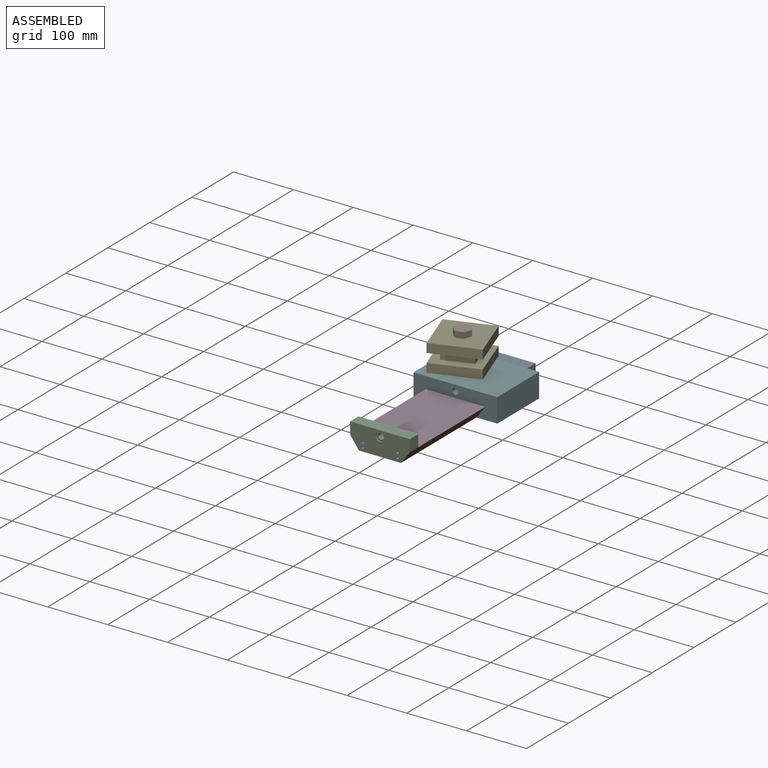
[diagram: assembled view]
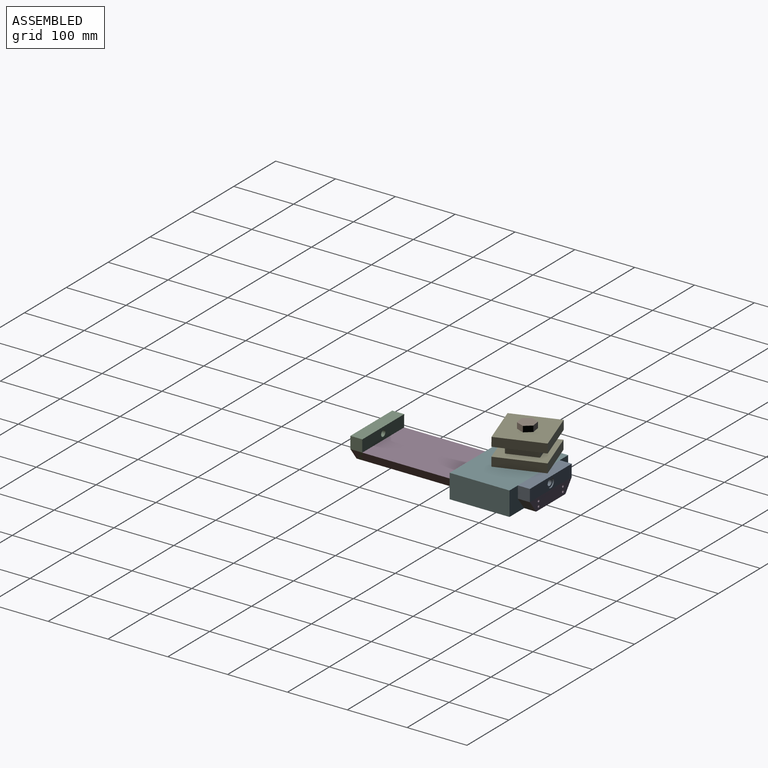
[diagram: assembled view, second angle]
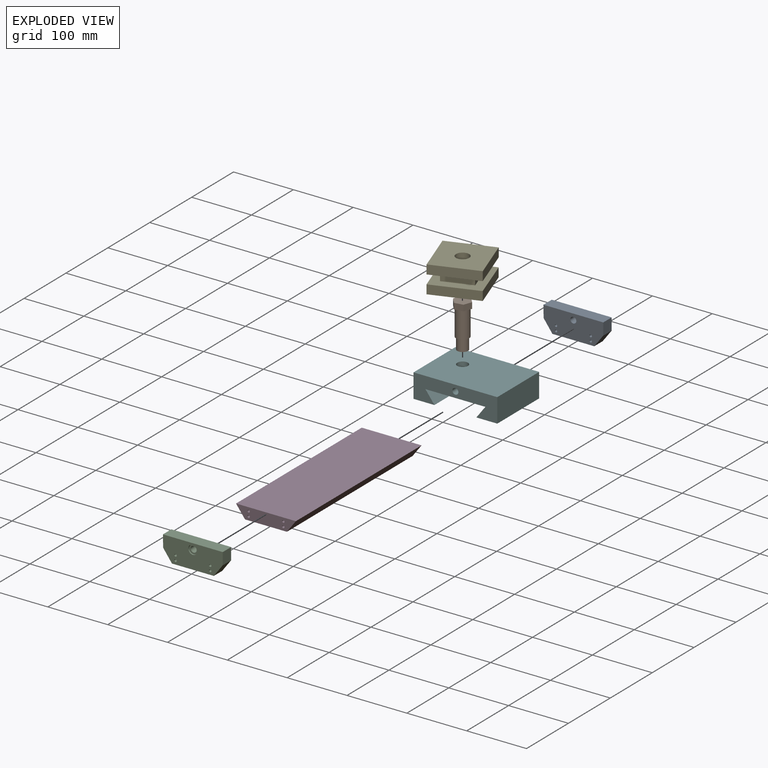
[diagram: exploded view]
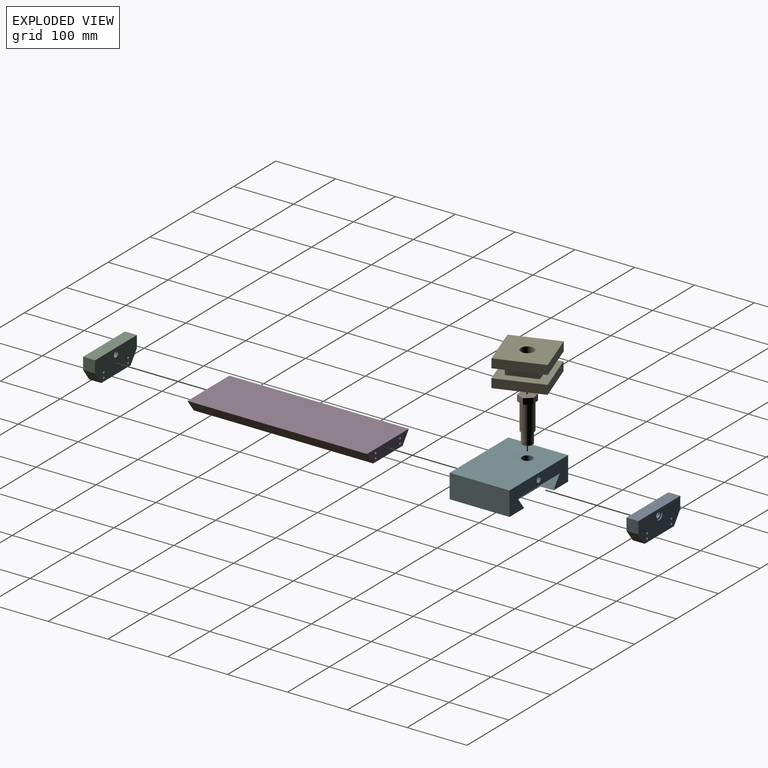
[diagram: exploded view, second angle]
ASSEMBLY  parts=6 mates=5
PART A: 15 faces, bbox 100x20x40 mm
  f0: cylinder r=5mm len=18mm, axis (0,-1,0), area 565.5mm2, adj f12,f14
  f1: plane 20x20mm, normal (-1,0,-0.02), area 400mm2, adj f2,f6,f11,f12
  f2: plane 20x20mm, normal (-0.81,0,-0.59), area 495.9mm2, adj f1,f3,f11,f12
  f3: plane 70x20mm, normal (0,0,-1), area 1400mm2, adj f2,f4,f11,f12
  f4: plane 20x20mm, normal (0.8,0,-0.6), area 500mm2, adj f3,f5,f11,f12
  f5: plane 20x20mm, normal (1,0,0), area 400mm2, adj f4,f6,f11,f12
  f6: plane 100x20mm, normal (0,0,1), area 2000mm2, adj f1,f5,f11,f12
  f7: cylinder r=2mm len=20mm, axis (0,-1,0), area 251.3mm2, adj f11,f12
  f8: cylinder r=2mm len=20mm, axis (0,-1,0), area 251.3mm2, adj f11,f12
  f9: cylinder r=2mm len=20mm, axis (0,-1,0), area 251.3mm2, adj f11,f12
  f10: cylinder r=2mm len=20mm, axis (0,-1,0), area 251.3mm2, adj f11,f12
  f11: plane 100x40mm, normal (0,1,0), area 3466.1mm2, adj f1,f2,f3,f4,f5,f6,f7,f8
  f12: plane 100x40mm, normal (0,-1,0), area 3564.2mm2, adj f0,f1,f2,f3,f4,f5,f6,f7
  f13: cylinder r=7.5mm len=15mm, axis (0,1,0), area 94.2mm2, adj f11,f14
  f14: plane 15x15mm, normal (0,1,0), area 98.2mm2, adj f0,f13
PART B: 12 faces, bbox 27.1x28.5x74 mm
  f0: plane 13.54x10mm, normal (-0.35,0.94,0), area 144.3mm2, adj f1,f5,f6,f7
  f1: plane 14.23x10mm, normal (-0.99,0.17,0), area 144.3mm2, adj f0,f2,f6,f7
  f2: plane 11.11x10mm, normal (-0.64,-0.77,0), area 144.3mm2, adj f1,f3,f6,f7
  f3: plane 13.54x10mm, normal (0.35,-0.94,0), area 144.3mm2, adj f2,f4,f6,f7
  f4: plane 14.23x10mm, normal (0.99,-0.17,0), area 144.3mm2, adj f3,f5,f6,f7
  f5: plane 11.11x10mm, normal (0.64,0.77,0), area 144.3mm2, adj f0,f4,f6,f7
  f6: plane 28.46x27.07mm, normal (0,0,-1), area 162.9mm2, adj f0,f1,f2,f3,f4,f5,f8
  f7: plane 28.46x27.07mm, normal (0,0,1), area 541.3mm2, adj f0,f1,f2,f3,f4,f5
  f8: cylinder r=10.97mm len=44.5mm, axis (0,0,1), area 3068.6mm2, adj f6,f9
  f9: plane 21.95x21.95mm, normal (0,0,-1), area 123.9mm2, adj f8,f10
  f10: cylinder r=9mm len=19.5mm, axis (0,0,1), area 1102.7mm2, adj f9,f11
  f11: plane 18x18mm, normal (0,0,-1), area 254.5mm2, adj f10
PART C: 15 faces, bbox 100x20x40 mm
  f0: cylinder r=5mm len=18mm, axis (0,-1,0), area 565.5mm2, adj f11,f14
  f1: plane 20x20mm, normal (-1,0,-0.02), area 400mm2, adj f2,f6,f11,f12
  f2: plane 20x20mm, normal (-0.81,0,-0.59), area 495.9mm2, adj f1,f3,f11,f12
  f3: plane 70x20mm, normal (0,0,-1), area 1400mm2, adj f2,f4,f11,f12
  f4: plane 20x20mm, normal (0.8,0,-0.6), area 500mm2, adj f3,f5,f11,f12
  f5: plane 20x20mm, normal (1,0,0), area 400mm2, adj f4,f6,f11,f12
  f6: plane 100x20mm, normal (0,0,1), area 2000mm2, adj f1,f5,f11,f12
  f7: cylinder r=2mm len=20mm, axis (0,-1,0), area 251.3mm2, adj f11,f12
  f8: cylinder r=2mm len=20mm, axis (0,-1,0), area 251.3mm2, adj f11,f12
  f9: cylinder r=2mm len=20mm, axis (0,-1,0), area 251.3mm2, adj f11,f12
  f10: cylinder r=2mm len=20mm, axis (0,-1,0), area 251.3mm2, adj f11,f12
  f11: plane 100x40mm, normal (0,1,0), area 3564.2mm2, adj f0,f1,f2,f3,f4,f5,f6,f7
  f12: plane 100x40mm, normal (0,-1,0), area 3466.1mm2, adj f1,f2,f3,f4,f5,f6,f7,f8
  f13: cylinder r=7.5mm len=15mm, axis (0,-1,0), area 94.2mm2, adj f12,f14
  f14: plane 15x15mm, normal (0,-1,0), area 98.2mm2, adj f0,f13
PART D: 22 faces, bbox 100x300x20 mm
  f0: plane 300x100mm, normal (0,0,1), area 30000mm2, adj f1,f3,f4,f5
  f1: plane 300x20mm, normal (-0.8,0,-0.6), area 7500mm2, adj f0,f2,f4,f5
  f2: plane 300x70mm, normal (0,0,-1), area 21000mm2, adj f1,f3,f4,f5
  f3: plane 300x20mm, normal (0.8,0,-0.6), area 7500mm2, adj f0,f2,f4,f5
  f4: plane 100x20mm, normal (0,-1,0), area 1649.7mm2, adj f0,f1,f2,f3,f14,f16,f18,f20
  f5: plane 100x20mm, normal (0,1,0), area 1649.7mm2, adj f0,f1,f2,f3,f6,f8,f10,f12
  f6: cylinder r=2mm len=25mm, axis (0,1,0), area 314.2mm2, adj f5,f7
  f7: plane 4x4mm, normal (0,1,0), area 12.6mm2, adj f6
  f8: cylinder r=2mm len=25mm, axis (0,1,0), area 314.2mm2, adj f5,f9
  f9: plane 4x4mm, normal (0,1,0), area 12.6mm2, adj f8
  f10: cylinder r=2mm len=25mm, axis (0,1,0), area 314.2mm2, adj f5,f11
  f11: plane 4x4mm, normal (0,1,0), area 12.6mm2, adj f10
  f12: cylinder r=2mm len=25mm, axis (0,1,0), area 314.2mm2, adj f5,f13
  f13: plane 4x4mm, normal (0,1,0), area 12.6mm2, adj f12
  f14: cylinder r=2mm len=25mm, axis (0,-1,0), area 314.2mm2, adj f4,f15
  f15: plane 4x4mm, normal (0,-1,0), area 12.6mm2, adj f14
  f16: cylinder r=2mm len=25mm, axis (0,-1,0), area 314.2mm2, adj f4,f17
  f17: plane 4x4mm, normal (0,-1,0), area 12.6mm2, adj f16
  f18: cylinder r=2mm len=25mm, axis (0,-1,0), area 314.2mm2, adj f4,f19
  f19: plane 4x4mm, normal (0,-1,0), area 12.6mm2, adj f18
  f20: cylinder r=2mm len=25mm, axis (0,-1,0), area 314.2mm2, adj f4,f21
  f21: plane 4x4mm, normal (0,-1,0), area 12.6mm2, adj f20
PART E: 18 faces, bbox 80.2x80x45 mm
  f0: plane 50x15mm, normal (-1,0,0), area 750mm2, adj f6,f10,f16,f17
  f1: plane 50x15mm, normal (1,0,0), area 750mm2, adj f10,f11,f16,f17
  f2: plane 80x15mm, normal (0,1,0), area 1200mm2, adj f7,f8,f9,f10
  f3: plane 80.21x15mm, normal (0,-1,0), area 1201.6mm2, adj f4,f5,f6,f11,f12
  f4: plane 80x80mm, normal (0,0,1), area 6019.9mm2, adj f3,f5,f12,f13,f15
  f5: plane 80x15mm, normal (-1,0,0.01), area 1200mm2, adj f3,f4,f6,f13
  f6: plane 80x15mm, normal (0,0,-1), area 1200mm2, adj f0,f3,f5,f11,f13
  f7: plane 80x15mm, normal (-1,0,0), area 1200mm2, adj f2,f8,f10,f14
  f8: plane 80x80mm, normal (0,0,-1), area 6019.9mm2, adj f2,f7,f9,f14,f15
  f9: plane 80x15mm, normal (1,0,0), area 1200mm2, adj f2,f8,f10,f14
  f10: plane 80x80mm, normal (0,0,1), area 3900mm2, adj f0,f1,f2,f7,f9,f14,f16,f17
  f11: plane 80x65.21mm, normal (0,0,-1), area 2716.9mm2, adj f1,f3,f6,f12,f13,f16,f17
  f12: plane 80x15mm, normal (1,0,0), area 1200mm2, adj f3,f4,f11,f13
  f13: plane 80.21x15mm, normal (0,1,0), area 1201.6mm2, adj f4,f5,f6,f11,f12
  f14: plane 80x15mm, normal (0,-1,0), area 1200mm2, adj f7,f8,f9,f10
  f15: cylinder r=11mm len=45mm, axis (0,0,1), area 3110.2mm2, adj f4,f8
  f16: plane 50x15mm, normal (0,-1,0), area 750mm2, adj f0,f1,f10,f11
  f17: plane 50x15mm, normal (0,1,0), area 750mm2, adj f0,f1,f10,f11
PART F: 12 faces, bbox 140x100x40 mm
  f0: plane 100x40mm, normal (1,0,0), area 4000mm2, adj f1,f8,f9,f10
  f1: plane 140x100mm, normal (0,0,1), area 13745.5mm2, adj f0,f2,f9,f10,f11
  f2: plane 100x40mm, normal (-1,0,0), area 4000mm2, adj f1,f3,f9,f10
  f3: plane 100x34.95mm, normal (0,0,-1), area 3495mm2, adj f2,f4,f9,f10
  f4: plane 100x20mm, normal (0.8,0,0.6), area 2500mm2, adj f3,f5,f9,f10
  f5: plane 100.1x100mm, normal (0,0,-1), area 9755.5mm2, adj f4,f6,f9,f10,f11
  f6: plane 100x20mm, normal (-0.8,0,0.6), area 2500mm2, adj f5,f8,f9,f10
  f7: cylinder r=5mm len=100mm, axis (0,1,0), area 3141.6mm2, adj f9,f10
  f8: plane 100x34.95mm, normal (0,0,-1), area 3495mm2, adj f0,f6,f9,f10
  f9: plane 140x40mm, normal (0,-1,0), area 3819.5mm2, adj f0,f1,f2,f3,f4,f5,f6,f7
  f10: plane 140x40mm, normal (0,1,0), area 3819.5mm2, adj f0,f1,f2,f3,f4,f5,f6,f7
  f11: cylinder r=9mm len=20mm, axis (0,0,1), area 1131mm2, adj f1,f5
PLACE A t=(0,130,-0.82)mm
PLACE B rot(axis=(0,0,1),109.1deg) t=(-30,90,63.93)mm
PLACE C t=(0,-150,-0.82)mm
PLACE D at identity fixed
PLACE E rot(axis=(0,0,1),109.1deg) t=(-30,90,31.16)mm
PLACE F rot(axis=(0,-0.02,-1),0deg) t=(0,80,-0.82)mm
MATE revolute E.f15 <-> F.f11  axis (0,0,1) through (-30,90,9.18)mm
MATE fastened B.f8 <-> E.f15  axis (0,0,1) through (-30,90,31.68)mm
MATE fastened C.f7 <-> D.f12  axis (0,-1,0) through (-29,-150,-24.82)mm
MATE fastened D.f8 <-> A.f9  axis (0,1,0) through (29,150,-24.82)mm
MATE slider A.f0 <-> F.f7  axis (0,-1,0) through (0,130,-0.82)mm
